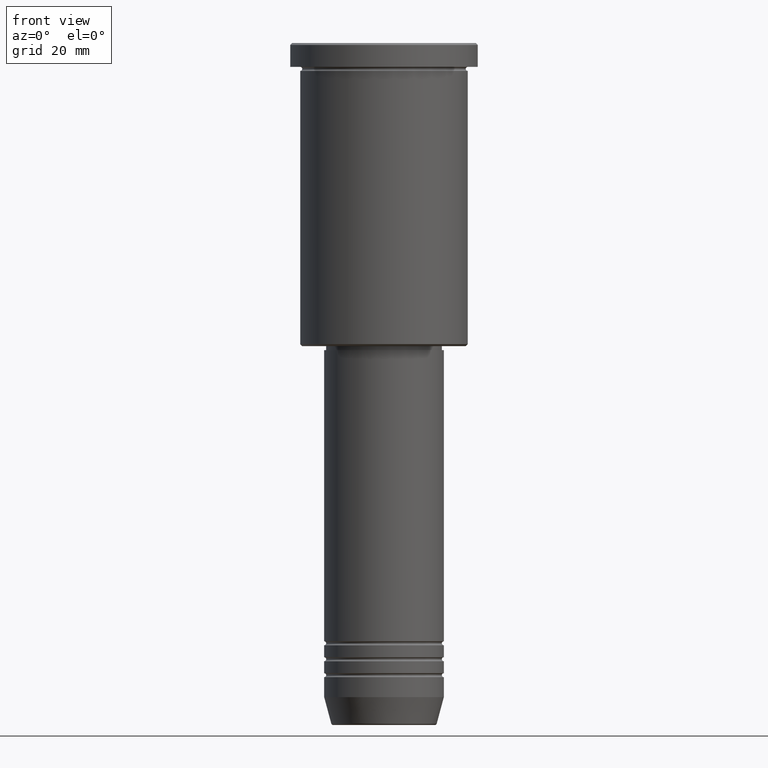
[diagram: clean part render]
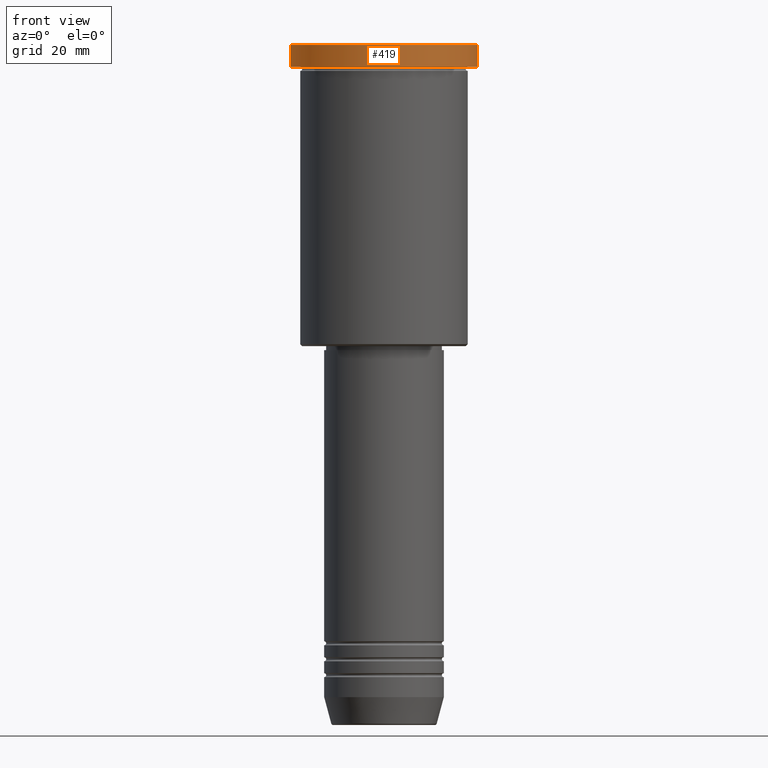
[diagram: same view with one face highlighted and labeled with its STEP entity id]
A machine part, front view. The second image highlights one B-rep face of the part: STEP entity #419.
In plain terms, the highlighted cylindrical surface (partial cylindrical patch) has radius 23.5 mm, axis along (-0, -0, 1).
Its self-contained STEP definition (entity closure, byte-faithful):
#53 = DIRECTION ( 'NONE',  ( 1.000000000000000000, 0.000000000000000000, 0.000000000000000000 ) ) ;
#56 = VERTEX_POINT ( 'NONE', #926 ) ;
#89 = CARTESIAN_POINT ( 'NONE',  ( 0.000000000000000000, 0.000000000000000000, 0.000000000000000000 ) ) ;
#156 = LINE ( 'NONE', #863, #225 ) ;
#177 = EDGE_LOOP ( 'NONE', ( #444, #250, #887, #896 ) ) ;
#200 = CARTESIAN_POINT ( 'NONE',  ( -23.50000000000000000, 2.877919977996280320E-15, 0.000000000000000000 ) ) ;
#225 = VECTOR ( 'NONE', #612, 1000.000000000000000 ) ;
#250 = ORIENTED_EDGE ( 'NONE', *, *, #680, .T. ) ;
#300 = AXIS2_PLACEMENT_3D ( 'NONE', #89, #437, #733 ) ;
#318 = AXIS2_PLACEMENT_3D ( 'NONE', #560, #885, #401 ) ;
#319 = CARTESIAN_POINT ( 'NONE',  ( -23.50000000000000000, 2.877919977996280320E-15, -0.4999999999999726885 ) ) ;
#356 = CIRCLE ( 'NONE', #833, 23.50000000000000000 ) ;
#401 = DIRECTION ( 'NONE',  ( 1.000000000000000000, 0.000000000000000000, 0.000000000000000000 ) ) ;
#419 = ADVANCED_FACE ( 'NONE', ( #989 ), #815, .T. ) ;
#437 = DIRECTION ( 'NONE',  ( -0.000000000000000000, -0.000000000000000000, 1.000000000000000000 ) ) ;
#444 = ORIENTED_EDGE ( 'NONE', *, *, #578, .F. ) ;
#454 = CARTESIAN_POINT ( 'NONE',  ( 23.50000000000000000, 0.000000000000000000, -5.999999999999993783 ) ) ;
#524 = CIRCLE ( 'NONE', #318, 23.50000000000000000 ) ;
#560 = CARTESIAN_POINT ( 'NONE',  ( 0.000000000000000000, 0.000000000000000000, -5.999999999999993783 ) ) ;
#578 = EDGE_CURVE ( 'NONE', #660, #761, #831, .T. ) ;
#612 = DIRECTION ( 'NONE',  ( -0.000000000000000000, -0.000000000000000000, 1.000000000000000000 ) ) ;
#660 = VERTEX_POINT ( 'NONE', #1114 ) ;
#680 = EDGE_CURVE ( 'NONE', #660, #844, #524, .T. ) ;
#682 = CARTESIAN_POINT ( 'NONE',  ( 0.000000000000000000, 0.000000000000000000, -0.4999999999999726885 ) ) ;
#733 = DIRECTION ( 'NONE',  ( 1.000000000000000000, 0.000000000000000000, 0.000000000000000000 ) ) ;
#742 = EDGE_CURVE ( 'NONE', #56, #761, #356, .T. ) ;
#761 = VERTEX_POINT ( 'NONE', #319 ) ;
#791 = VECTOR ( 'NONE', #855, 1000.000000000000000 ) ;
#815 = CYLINDRICAL_SURFACE ( 'NONE', #300, 23.50000000000000000 ) ;
#831 = LINE ( 'NONE', #200, #791 ) ;
#833 = AXIS2_PLACEMENT_3D ( 'NONE', #682, #974, #53 ) ;
#844 = VERTEX_POINT ( 'NONE', #454 ) ;
#855 = DIRECTION ( 'NONE',  ( -0.000000000000000000, -0.000000000000000000, 1.000000000000000000 ) ) ;
#863 = CARTESIAN_POINT ( 'NONE',  ( 23.50000000000000000, 0.000000000000000000, 0.000000000000000000 ) ) ;
#885 = DIRECTION ( 'NONE',  ( -0.000000000000000000, -0.000000000000000000, 1.000000000000000000 ) ) ;
#887 = ORIENTED_EDGE ( 'NONE', *, *, #986, .T. ) ;
#896 = ORIENTED_EDGE ( 'NONE', *, *, #742, .T. ) ;
#926 = CARTESIAN_POINT ( 'NONE',  ( 23.50000000000000000, 0.000000000000000000, -0.4999999999999726885 ) ) ;
#974 = DIRECTION ( 'NONE',  ( 0.000000000000000000, 0.000000000000000000, -1.000000000000000000 ) ) ;
#986 = EDGE_CURVE ( 'NONE', #844, #56, #156, .T. ) ;
#989 = FACE_OUTER_BOUND ( 'NONE', #177, .T. ) ;
#1114 = CARTESIAN_POINT ( 'NONE',  ( -23.50000000000000000, 2.877919977996280320E-15, -5.999999999999993783 ) ) ;